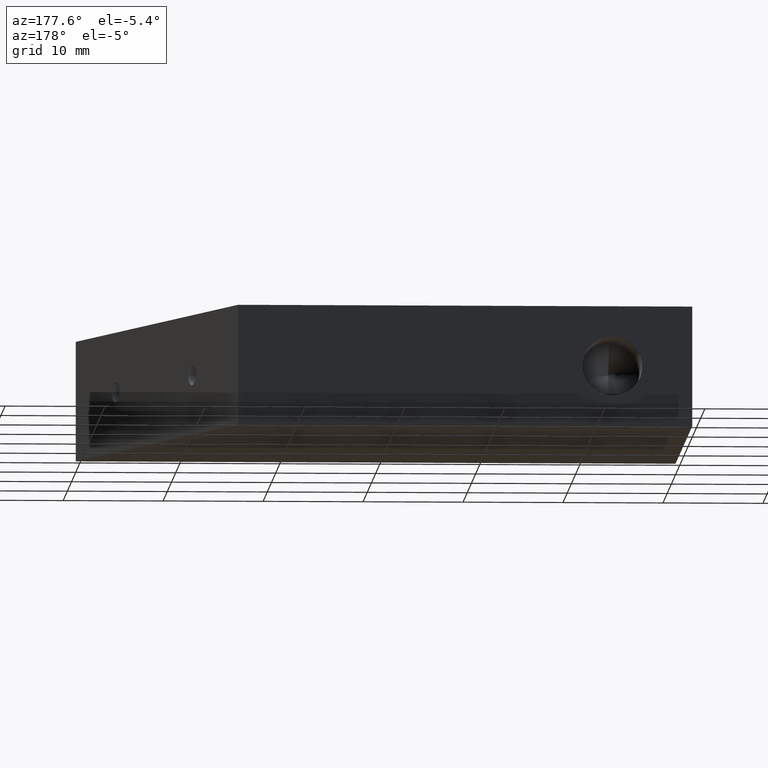
[diagram: clean part render]
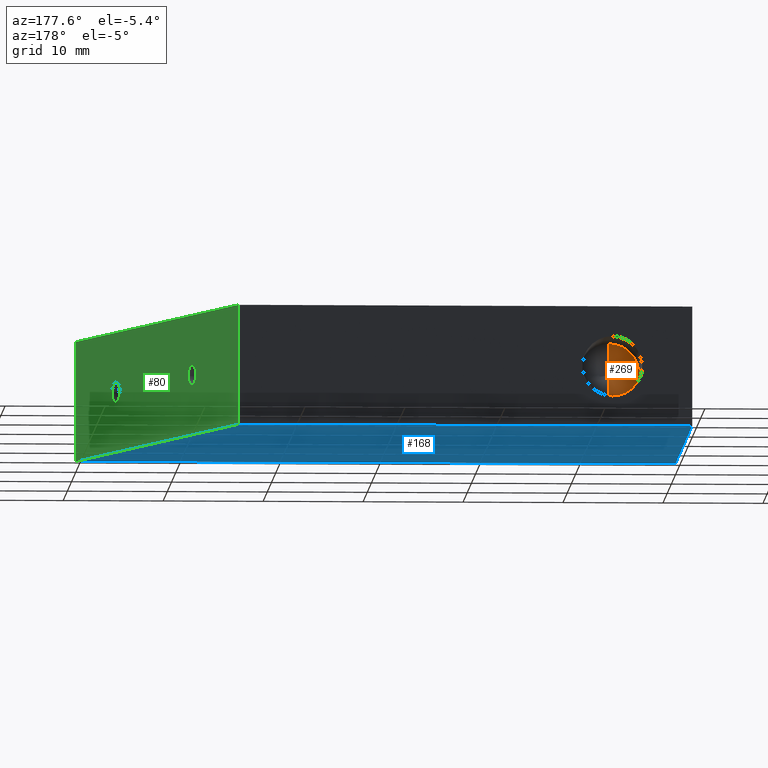
[diagram: same view with three faces highlighted in distinct colors, each labeled with its STEP entity id]
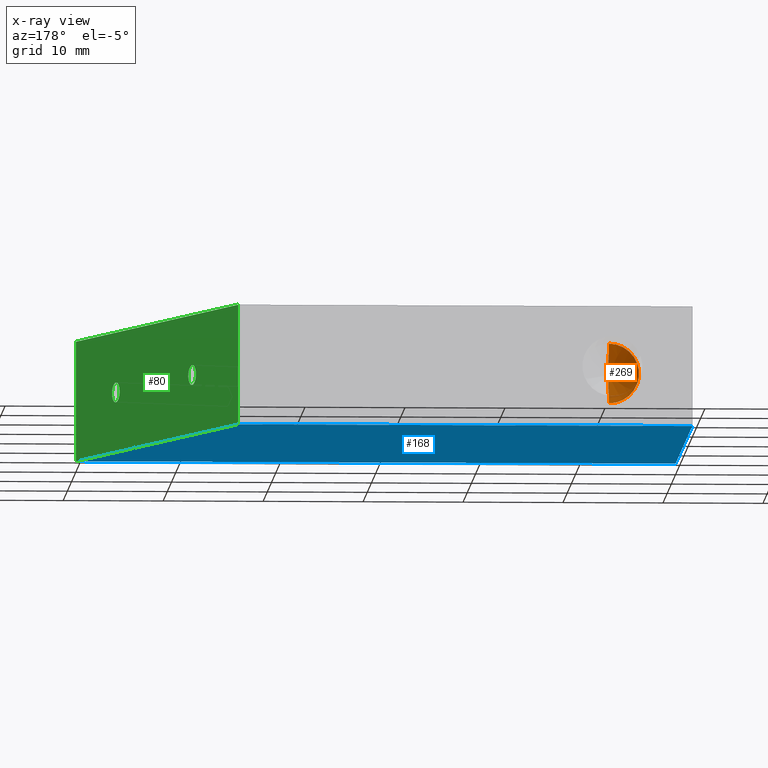
[diagram: x-ray of the same camera — body ghosted, the three highlighted faces saturated]
A machine part, auxiliary view with three faces highlighted in distinct colors.
The next image is the same camera in x-ray (body ghosted, the three faces saturated) — at least one of them is partly hidden behind the body in this view.
Their STEP definitions:

[orange] entity #269 — the highlighted conical surface has half-angle 59 deg.
#14 = DIRECTION ( 'NONE',  ( 1.049727191138618600E-016, 0.5150380749100542700, -0.8571673007021122200 ) ) ;
#21 = CARTESIAN_POINT ( 'NONE',  ( 8.000000000000000000, 32.00000000000000000, -2.999999999999999100 ) ) ;
#32 = EDGE_CURVE ( 'NONE', #434, #427, #259, .T. ) ;
#50 = EDGE_CURVE ( 'NONE', #434, #336, #245, .T. ) ;
#90 = DIRECTION ( 'NONE',  ( 0.0000000000000000000, 0.5150380749100542700, 0.8571673007021122200 ) ) ;
#109 = CARTESIAN_POINT ( 'NONE',  ( 8.000000000000000000, 32.00000000000000000, 0.0000000000000000000 ) ) ;
#127 = AXIS2_PLACEMENT_3D ( 'NONE', #109, #441, #410 ) ;
#151 = CIRCLE ( 'NONE', #127, 2.999999999999999100 ) ;
#197 = CONICAL_SURFACE ( 'NONE', #282, 2.999999999999999100, 1.029744258676654300 ) ;
#206 = FACE_OUTER_BOUND ( 'NONE', #354, .T. ) ;
#245 = LINE ( 'NONE', #310, #249 ) ;
#249 = VECTOR ( 'NONE', #90, 1000.000000000000000 ) ;
#254 = VECTOR ( 'NONE', #14, 1000.000000000000000 ) ;
#256 = CARTESIAN_POINT ( 'NONE',  ( 8.000000000000000000, 32.00000000000000000, 2.999999999999999100 ) ) ;
#259 = LINE ( 'NONE', #21, #254 ) ;
#269 = ADVANCED_FACE ( 'NONE', ( #206 ), #197, .F. ) ;
#282 = AXIS2_PLACEMENT_3D ( 'NONE', #481, #449, #447 ) ;
#299 = ORIENTED_EDGE ( 'NONE', *, *, #50, .F. ) ;
#310 = CARTESIAN_POINT ( 'NONE',  ( 8.000000000000000000, 32.00000000000000000, 2.999999999999999100 ) ) ;
#329 = ORIENTED_EDGE ( 'NONE', *, *, #408, .T. ) ;
#336 = VERTEX_POINT ( 'NONE', #256 ) ;
#354 = EDGE_LOOP ( 'NONE', ( #299, #461, #329 ) ) ;
#377 = CARTESIAN_POINT ( 'NONE',  ( 7.999999999999998200, 30.19741814291732100, 0.0000000000000000000 ) ) ;
#396 = CARTESIAN_POINT ( 'NONE',  ( 8.000000000000000000, 32.00000000000000000, -2.999999999999999100 ) ) ;
#408 = EDGE_CURVE ( 'NONE', #427, #336, #151, .T. ) ;
#410 = DIRECTION ( 'NONE',  ( 0.0000000000000000000, 0.0000000000000000000, 1.000000000000000000 ) ) ;
#427 = VERTEX_POINT ( 'NONE', #396 ) ;
#434 = VERTEX_POINT ( 'NONE', #377 ) ;
#441 = DIRECTION ( 'NONE',  ( -0.0000000000000000000, 1.000000000000000000, -0.0000000000000000000 ) ) ;
#447 = DIRECTION ( 'NONE',  ( 0.0000000000000000000, 0.0000000000000000000, 1.000000000000000000 ) ) ;
#449 = DIRECTION ( 'NONE',  ( -0.0000000000000000000, 1.000000000000000000, -0.0000000000000000000 ) ) ;
#461 = ORIENTED_EDGE ( 'NONE', *, *, #32, .T. ) ;
#481 = CARTESIAN_POINT ( 'NONE',  ( 8.000000000000000000, 32.00000000000000000, 0.0000000000000000000 ) ) ;

[blue] entity #168 — the highlighted planar face has unit normal (0, 0, -1).
#20 = VERTEX_POINT ( 'NONE', #68 ) ;
#43 = CARTESIAN_POINT ( 'NONE',  ( 0.0000000000000000000, 0.0000000000000000000, -6.000000000000000000 ) ) ;
#55 = DIRECTION ( 'NONE',  ( -0.0000000000000000000, -1.000000000000000000, -0.0000000000000000000 ) ) ;
#63 = PLANE ( 'NONE',  #287 ) ;
#68 = CARTESIAN_POINT ( 'NONE',  ( 0.0000000000000000000, 40.00000000000000000, -6.000000000000000000 ) ) ;
#70 = EDGE_CURVE ( 'NONE', #20, #241, #243, .T. ) ;
#92 = ORIENTED_EDGE ( 'NONE', *, *, #361, .F. ) ;
#118 = CARTESIAN_POINT ( 'NONE',  ( 45.44119062935171600, 40.00000000000000000, -6.000000000000000000 ) ) ;
#125 = CARTESIAN_POINT ( 'NONE',  ( 0.0000000000000000000, 0.0000000000000000000, -6.000000000000000000 ) ) ;
#164 = LINE ( 'NONE', #445, #167 ) ;
#167 = VECTOR ( 'NONE', #324, 1000.000000000000000 ) ;
#168 = ADVANCED_FACE ( 'NONE', ( #219 ), #63, .T. ) ;
#179 = LINE ( 'NONE', #260, #183 ) ;
#183 = VECTOR ( 'NONE', #264, 1000.000000000000200 ) ;
#187 = VERTEX_POINT ( 'NONE', #398 ) ;
#188 = LINE ( 'NONE', #369, #189 ) ;
#189 = VECTOR ( 'NONE', #370, 1000.000000000000000 ) ;
#219 = FACE_OUTER_BOUND ( 'NONE', #314, .T. ) ;
#239 = VECTOR ( 'NONE', #55, 1000.000000000000000 ) ;
#241 = VERTEX_POINT ( 'NONE', #43 ) ;
#243 = LINE ( 'NONE', #125, #239 ) ;
#260 = CARTESIAN_POINT ( 'NONE',  ( 45.44119062935171600, 40.00000000000000000, -6.000000000000000000 ) ) ;
#264 = DIRECTION ( 'NONE',  ( -0.3420201433256726000, 0.9396926207859068700, -0.0000000000000000000 ) ) ;
#280 = DIRECTION ( 'NONE',  ( -1.000000000000000000, 0.0000000000000000000, -0.0000000000000000000 ) ) ;
#287 = AXIS2_PLACEMENT_3D ( 'NONE', #454, #295, #280 ) ;
#295 = DIRECTION ( 'NONE',  ( 0.0000000000000000000, 0.0000000000000000000, -1.000000000000000000 ) ) ;
#314 = EDGE_LOOP ( 'NONE', ( #494, #332, #92, #509 ) ) ;
#324 = DIRECTION ( 'NONE',  ( 1.000000000000000000, -1.161219106975661900E-017, -0.0000000000000000000 ) ) ;
#332 = ORIENTED_EDGE ( 'NONE', *, *, #70, .F. ) ;
#334 = EDGE_CURVE ( 'NONE', #187, #467, #179, .T. ) ;
#361 = EDGE_CURVE ( 'NONE', #467, #20, #188, .T. ) ;
#369 = CARTESIAN_POINT ( 'NONE',  ( 0.0000000000000000000, 40.00000000000000000, -6.000000000000000000 ) ) ;
#370 = DIRECTION ( 'NONE',  ( -1.000000000000000000, -0.0000000000000000000, -0.0000000000000000000 ) ) ;
#398 = CARTESIAN_POINT ( 'NONE',  ( 60.00000000000000000, -6.967314641853971000E-016, -6.000000000000000000 ) ) ;
#400 = EDGE_CURVE ( 'NONE', #241, #187, #164, .T. ) ;
#445 = CARTESIAN_POINT ( 'NONE',  ( 60.00000000000000000, -6.967314641853971000E-016, -6.000000000000000000 ) ) ;
#454 = CARTESIAN_POINT ( 'NONE',  ( 0.0000000000000000000, 0.0000000000000000000, -6.000000000000000000 ) ) ;
#467 = VERTEX_POINT ( 'NONE', #118 ) ;
#494 = ORIENTED_EDGE ( 'NONE', *, *, #400, .F. ) ;
#509 = ORIENTED_EDGE ( 'NONE', *, *, #334, .F. ) ;

[green] entity #80 — the highlighted planar face has unit normal (-0.9397, -0.342, 0).
#6 = DIRECTION ( 'NONE',  ( 0.9396926207859071000, 0.3420201433256727100, -0.0000000000000000000 ) ) ;
#7 = CARTESIAN_POINT ( 'NONE',  ( 49.56113186031245700, 28.68055449845544700, -2.357763936407512000E-015 ) ) ;
#23 = EDGE_CURVE ( 'NONE', #366, #98, #265, .T. ) ;
#80 = ADVANCED_FACE ( 'NONE', ( #222, #234, #223 ), #238, .F. ) ;
#83 = DIRECTION ( 'NONE',  ( -0.0000000000000000000, -0.0000000000000000000, -1.000000000000000000 ) ) ;
#88 = DIRECTION ( 'NONE',  ( -0.3420201433256727700, 0.9396926207859069800, 0.0000000000000000000 ) ) ;
#91 = DIRECTION ( 'NONE',  ( 0.9396926207859071000, 0.3420201433256727100, -0.0000000000000000000 ) ) ;
#93 = CARTESIAN_POINT ( 'NONE',  ( 45.44119062935171600, 40.00000000000000000, 6.000000000000000000 ) ) ;
#98 = VERTEX_POINT ( 'NONE', #384 ) ;
#102 = CARTESIAN_POINT ( 'NONE',  ( 49.56113186031245700, 28.68055449845544700, -2.357763936407512000E-015 ) ) ;
#103 = CARTESIAN_POINT ( 'NONE',  ( 45.44119062935171600, 40.00000000000000000, 6.000000000000000000 ) ) ;
#105 = AXIS2_PLACEMENT_3D ( 'NONE', #102, #91, #88 ) ;
#107 = CARTESIAN_POINT ( 'NONE',  ( 45.44119062935171600, 40.00000000000000000, 6.000000000000000000 ) ) ;
#112 = ORIENTED_EDGE ( 'NONE', *, *, #334, .T. ) ;
#113 = EDGE_CURVE ( 'NONE', #436, #482, #228, .T. ) ;
#118 = CARTESIAN_POINT ( 'NONE',  ( 45.44119062935171600, 40.00000000000000000, -6.000000000000000000 ) ) ;
#119 = VECTOR ( 'NONE', #83, 1000.000000000000000 ) ;
#121 = CARTESIAN_POINT ( 'NONE',  ( 45.44119062935171600, 40.00000000000000000, 6.000000000000000000 ) ) ;
#122 = ORIENTED_EDGE ( 'NONE', *, *, #23, .F. ) ;
#124 = CIRCLE ( 'NONE', #105, 0.9999999999999896700 ) ;
#135 = LINE ( 'NONE', #103, #119 ) ;
#136 = AXIS2_PLACEMENT_3D ( 'NONE', #373, #372, #496 ) ;
#144 = VERTEX_POINT ( 'NONE', #499 ) ;
#152 = CARTESIAN_POINT ( 'NONE',  ( 56.74355487015157700, 8.947009461951406500, -2.235299256492776900E-015 ) ) ;
#154 = LINE ( 'NONE', #281, #156 ) ;
#156 = VECTOR ( 'NONE', #296, 1000.000000000000000 ) ;
#162 = CIRCLE ( 'NONE', #136, 0.9999999999999896700 ) ;
#173 = CIRCLE ( 'NONE', #196, 0.9999999999999896700 ) ;
#179 = LINE ( 'NONE', #260, #183 ) ;
#183 = VECTOR ( 'NONE', #264, 1000.000000000000200 ) ;
#187 = VERTEX_POINT ( 'NONE', #398 ) ;
#196 = AXIS2_PLACEMENT_3D ( 'NONE', #333, #331, #251 ) ;
#215 = VECTOR ( 'NONE', #344, 1000.000000000000200 ) ;
#222 = FACE_BOUND ( 'NONE', #293, .T. ) ;
#223 = FACE_OUTER_BOUND ( 'NONE', #279, .T. ) ;
#228 = LINE ( 'NONE', #121, #215 ) ;
#234 = FACE_BOUND ( 'NONE', #395, .T. ) ;
#235 = DIRECTION ( 'NONE',  ( -0.9396926207859069800, -0.3420201433256727100, 0.0000000000000000000 ) ) ;
#238 = PLANE ( 'NONE',  #319 ) ;
#251 = DIRECTION ( 'NONE',  ( -0.3420201433256727700, 0.9396926207859069800, 0.0000000000000000000 ) ) ;
#260 = CARTESIAN_POINT ( 'NONE',  ( 45.44119062935171600, 40.00000000000000000, -6.000000000000000000 ) ) ;
#264 = DIRECTION ( 'NONE',  ( -0.3420201433256726000, 0.9396926207859068700, -0.0000000000000000000 ) ) ;
#265 = CIRCLE ( 'NONE', #387, 0.9999999999999896700 ) ;
#279 = EDGE_LOOP ( 'NONE', ( #112, #391, #290, #459 ) ) ;
#281 = CARTESIAN_POINT ( 'NONE',  ( 60.00000000000000000, -6.967314641853971000E-016, 6.000000000000000000 ) ) ;
#290 = ORIENTED_EDGE ( 'NONE', *, *, #113, .F. ) ;
#293 = EDGE_LOOP ( 'NONE', ( #480, #122 ) ) ;
#296 = DIRECTION ( 'NONE',  ( -0.0000000000000000000, -0.0000000000000000000, -1.000000000000000000 ) ) ;
#317 = DIRECTION ( 'NONE',  ( 0.3420201433256726500, -0.9396926207859068700, 0.0000000000000000000 ) ) ;
#319 = AXIS2_PLACEMENT_3D ( 'NONE', #93, #235, #317 ) ;
#331 = DIRECTION ( 'NONE',  ( 0.9396926207859071000, 0.3420201433256727100, -0.0000000000000000000 ) ) ;
#333 = CARTESIAN_POINT ( 'NONE',  ( 56.40153472682590800, 9.886702082737306400, -2.357763936407511600E-015 ) ) ;
#334 = EDGE_CURVE ( 'NONE', #187, #467, #179, .T. ) ;
#344 = DIRECTION ( 'NONE',  ( -0.3420201433256726000, 0.9396926207859068700, -0.0000000000000000000 ) ) ;
#363 = EDGE_CURVE ( 'NONE', #144, #465, #173, .T. ) ;
#366 = VERTEX_POINT ( 'NONE', #401 ) ;
#372 = DIRECTION ( 'NONE',  ( 0.9396926207859071000, 0.3420201433256727100, -0.0000000000000000000 ) ) ;
#373 = CARTESIAN_POINT ( 'NONE',  ( 56.40153472682590800, 9.886702082737306400, -2.357763936407511600E-015 ) ) ;
#383 = CARTESIAN_POINT ( 'NONE',  ( 60.00000000000000000, -6.967314641853971000E-016, 6.000000000000000000 ) ) ;
#384 = CARTESIAN_POINT ( 'NONE',  ( 49.21911171698678800, 29.62024711924134800, -2.357763936407512000E-015 ) ) ;
#387 = AXIS2_PLACEMENT_3D ( 'NONE', #7, #6, #414 ) ;
#389 = EDGE_CURVE ( 'NONE', #465, #144, #162, .T. ) ;
#391 = ORIENTED_EDGE ( 'NONE', *, *, #486, .F. ) ;
#395 = EDGE_LOOP ( 'NONE', ( #418, #502 ) ) ;
#398 = CARTESIAN_POINT ( 'NONE',  ( 60.00000000000000000, -6.967314641853971000E-016, -6.000000000000000000 ) ) ;
#401 = CARTESIAN_POINT ( 'NONE',  ( 49.90315200363812700, 27.74086187766954800, -2.235299256492777300E-015 ) ) ;
#413 = EDGE_CURVE ( 'NONE', #436, #187, #154, .T. ) ;
#414 = DIRECTION ( 'NONE',  ( -0.3420201433256727700, 0.9396926207859069800, 0.0000000000000000000 ) ) ;
#418 = ORIENTED_EDGE ( 'NONE', *, *, #363, .F. ) ;
#436 = VERTEX_POINT ( 'NONE', #383 ) ;
#459 = ORIENTED_EDGE ( 'NONE', *, *, #413, .T. ) ;
#465 = VERTEX_POINT ( 'NONE', #152 ) ;
#467 = VERTEX_POINT ( 'NONE', #118 ) ;
#468 = EDGE_CURVE ( 'NONE', #98, #366, #124, .T. ) ;
#480 = ORIENTED_EDGE ( 'NONE', *, *, #468, .F. ) ;
#482 = VERTEX_POINT ( 'NONE', #107 ) ;
#486 = EDGE_CURVE ( 'NONE', #482, #467, #135, .T. ) ;
#496 = DIRECTION ( 'NONE',  ( -0.3420201433256727700, 0.9396926207859069800, 0.0000000000000000000 ) ) ;
#499 = CARTESIAN_POINT ( 'NONE',  ( 56.05951458350023800, 10.82639470352320800, -2.357763936407511600E-015 ) ) ;
#502 = ORIENTED_EDGE ( 'NONE', *, *, #389, .F. ) ;